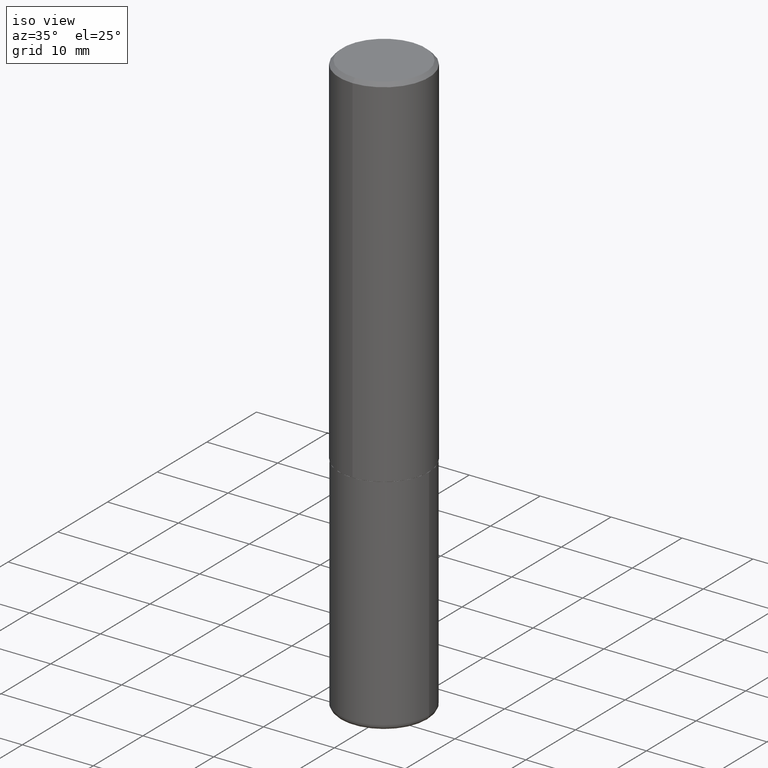
[diagram: clean part render]
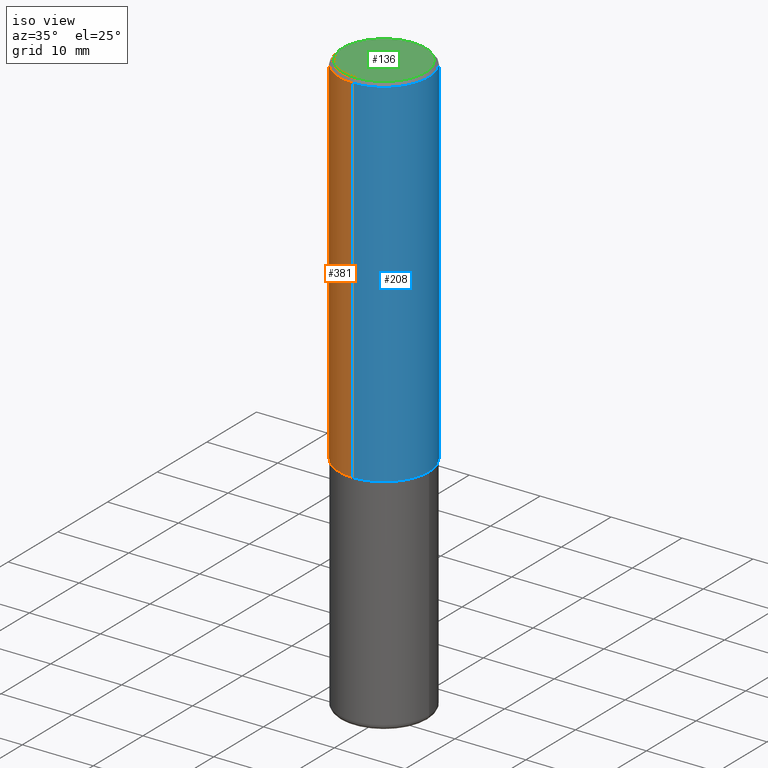
[diagram: same view with three faces highlighted in distinct colors, each labeled with its STEP entity id]
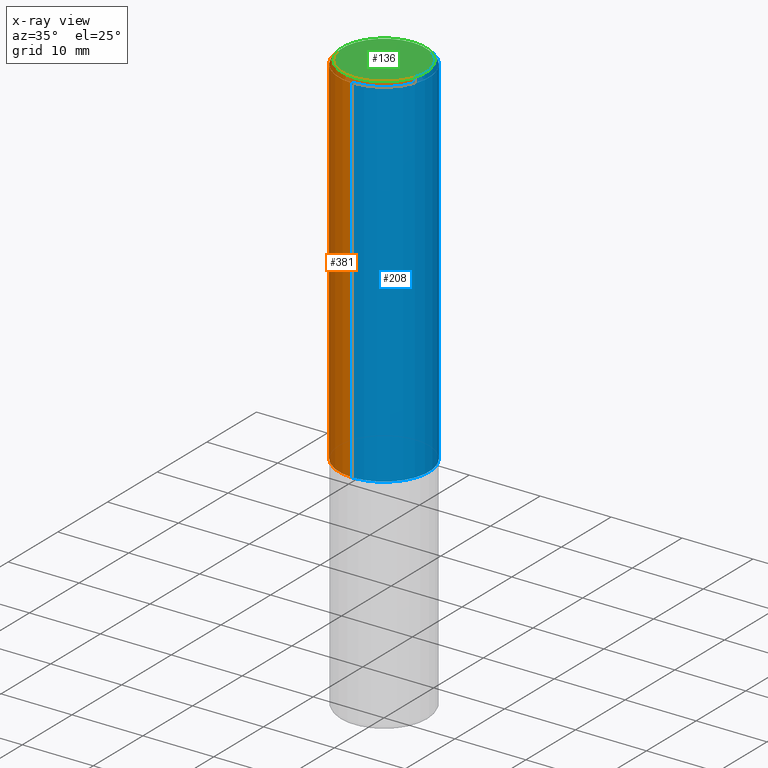
[diagram: x-ray of the same camera — body ghosted, the three highlighted faces saturated]
A machine part, iso view with three faces highlighted in distinct colors.
The next image is the same camera in x-ray (body ghosted, the three faces saturated) — at least one of them is partly hidden behind the body in this view.
Their STEP definitions:

[orange] entity #381 — the highlighted cylindrical surface (partial cylindrical patch) has radius 6.35 mm, axis along (-0, 0, 1).
#8 = CARTESIAN_POINT ( 'NONE',  ( 4.889829077511369061E-31, -6.984550162698166284E-17, -0.02000000000000005593 ) ) ;
#14 = DIRECTION ( 'NONE',  ( -6.982962677686265922E-15, -1.000000000000000000, 3.500180241882337261E-15 ) ) ;
#15 = VERTEX_POINT ( 'NONE', #246 ) ;
#30 = DIRECTION ( 'NONE',  ( -6.982962677686266711E-15, -1.000000000000000000, 3.492275081349073750E-15 ) ) ;
#60 = EDGE_CURVE ( 'NONE', #280, #15, #220, .T. ) ;
#61 = CARTESIAN_POINT ( 'NONE',  ( 1.776356839400276103E-15, 0.2499999999999933109, -1.999000000000000776 ) ) ;
#66 = CYLINDRICAL_SURFACE ( 'NONE', #195, 0.2500000000000001110 ) ;
#67 = ORIENTED_EDGE ( 'NONE', *, *, #150, .F. ) ;
#106 = CIRCLE ( 'NONE', #382, 0.2500000000000002220 ) ;
#111 = DIRECTION ( 'NONE',  ( -2.444914538755677752E-29, 3.492275081349073750E-15, 1.000000000000000000 ) ) ;
#138 = CARTESIAN_POINT ( 'NONE',  ( 0.000000000000000000, 0.000000000000000000, 0.000000000000000000 ) ) ;
#143 = ORIENTED_EDGE ( 'NONE', *, *, #60, .F. ) ;
#146 = VERTEX_POINT ( 'NONE', #61 ) ;
#150 = EDGE_CURVE ( 'NONE', #146, #280, #408, .T. ) ;
#152 = EDGE_LOOP ( 'NONE', ( #67, #204, #351, #143 ) ) ;
#162 = CARTESIAN_POINT ( 'NONE',  ( 4.887384162972599193E-29, -6.981057887616797828E-15, -1.998999999999999888 ) ) ;
#165 = VECTOR ( 'NONE', #416, 39.37007874015748143 ) ;
#169 = LINE ( 'NONE', #303, #165 ) ;
#183 = DIRECTION ( 'NONE',  ( -6.982962677686266711E-15, -1.000000000000000000, 3.278217592397113101E-15 ) ) ;
#186 = EDGE_CURVE ( 'NONE', #267, #15, #169, .T. ) ;
#192 = DIRECTION ( 'NONE',  ( -2.444914538755678032E-29, 3.492275081349073750E-15, 1.000000000000000000 ) ) ;
#195 = AXIS2_PLACEMENT_3D ( 'NONE', #138, #415, #30 ) ;
#204 = ORIENTED_EDGE ( 'NONE', *, *, #233, .T. ) ;
#213 = VECTOR ( 'NONE', #192, 39.37007874015748143 ) ;
#220 = CIRCLE ( 'NONE', #396, 0.2500000000000000000 ) ;
#233 = EDGE_CURVE ( 'NONE', #146, #267, #106, .T. ) ;
#246 = CARTESIAN_POINT ( 'NONE',  ( -1.715124499442882299E-15, -0.2500000000000000555, -0.01999999999999918163 ) ) ;
#267 = VERTEX_POINT ( 'NONE', #371 ) ;
#280 = VERTEX_POINT ( 'NONE', #294 ) ;
#294 = CARTESIAN_POINT ( 'NONE',  ( 1.745740669421566875E-15, 0.2499999999999999167, -0.02000000000000093023 ) ) ;
#303 = CARTESIAN_POINT ( 'NONE',  ( -1.745740669421567467E-15, -0.2500000000000001110, 8.730687703372688319E-16 ) ) ;
#326 = DIRECTION ( 'NONE',  ( -2.444914538755677752E-29, 3.492275081349073750E-15, 1.000000000000000000 ) ) ;
#339 = CARTESIAN_POINT ( 'NONE',  ( 1.776356839400251254E-15, 0.2500000000000001110, -8.730687703372688319E-16 ) ) ;
#351 = ORIENTED_EDGE ( 'NONE', *, *, #186, .T. ) ;
#371 = CARTESIAN_POINT ( 'NONE',  ( -1.745740669421519346E-15, -0.2500000000000072164, -1.998999999999999000 ) ) ;
#378 = FACE_OUTER_BOUND ( 'NONE', #152, .T. ) ;
#381 = ADVANCED_FACE ( 'NONE', ( #378 ), #66, .T. ) ;
#382 = AXIS2_PLACEMENT_3D ( 'NONE', #162, #111, #183 ) ;
#396 = AXIS2_PLACEMENT_3D ( 'NONE', #8, #326, #14 ) ;
#408 = LINE ( 'NONE', #339, #213 ) ;
#415 = DIRECTION ( 'NONE',  ( -2.444914538755677752E-29, 3.492275081349073750E-15, 1.000000000000000000 ) ) ;
#416 = DIRECTION ( 'NONE',  ( -2.444914538755678032E-29, 3.492275081349073750E-15, 1.000000000000000000 ) ) ;

[blue] entity #208 — the highlighted cylindrical surface (partial cylindrical patch) has radius 6.35 mm, axis along (-0, 0, 1).
#15 = VERTEX_POINT ( 'NONE', #246 ) ;
#18 = AXIS2_PLACEMENT_3D ( 'NONE', #411, #190, #347 ) ;
#33 = ORIENTED_EDGE ( 'NONE', *, *, #102, .T. ) ;
#55 = CARTESIAN_POINT ( 'NONE',  ( 0.000000000000000000, 0.000000000000000000, 0.000000000000000000 ) ) ;
#61 = CARTESIAN_POINT ( 'NONE',  ( 1.776356839400276103E-15, 0.2499999999999933109, -1.999000000000000776 ) ) ;
#101 = DIRECTION ( 'NONE',  ( -2.444914538755677752E-29, 3.492275081349073750E-15, 1.000000000000000000 ) ) ;
#102 = EDGE_CURVE ( 'NONE', #267, #146, #151, .T. ) ;
#119 = CARTESIAN_POINT ( 'NONE',  ( 4.889829077511369061E-31, -6.984550162698166284E-17, -0.02000000000000005593 ) ) ;
#132 = FACE_OUTER_BOUND ( 'NONE', #317, .T. ) ;
#139 = ORIENTED_EDGE ( 'NONE', *, *, #311, .F. ) ;
#144 = ORIENTED_EDGE ( 'NONE', *, *, #150, .T. ) ;
#146 = VERTEX_POINT ( 'NONE', #61 ) ;
#150 = EDGE_CURVE ( 'NONE', #146, #280, #408, .T. ) ;
#151 = CIRCLE ( 'NONE', #18, 0.2500000000000002220 ) ;
#165 = VECTOR ( 'NONE', #416, 39.37007874015748143 ) ;
#167 = DIRECTION ( 'NONE',  ( -6.982962677686266711E-15, -1.000000000000000000, 3.492275081349073750E-15 ) ) ;
#169 = LINE ( 'NONE', #303, #165 ) ;
#175 = AXIS2_PLACEMENT_3D ( 'NONE', #119, #398, #222 ) ;
#186 = EDGE_CURVE ( 'NONE', #267, #15, #169, .T. ) ;
#190 = DIRECTION ( 'NONE',  ( -2.444914538755677752E-29, 3.492275081349073750E-15, 1.000000000000000000 ) ) ;
#192 = DIRECTION ( 'NONE',  ( -2.444914538755678032E-29, 3.492275081349073750E-15, 1.000000000000000000 ) ) ;
#205 = ORIENTED_EDGE ( 'NONE', *, *, #186, .F. ) ;
#208 = ADVANCED_FACE ( 'NONE', ( #132 ), #255, .T. ) ;
#213 = VECTOR ( 'NONE', #192, 39.37007874015748143 ) ;
#222 = DIRECTION ( 'NONE',  ( -6.982962677686265922E-15, -1.000000000000000000, 3.500180241882337261E-15 ) ) ;
#228 = CIRCLE ( 'NONE', #175, 0.2500000000000000000 ) ;
#246 = CARTESIAN_POINT ( 'NONE',  ( -1.715124499442882299E-15, -0.2500000000000000555, -0.01999999999999918163 ) ) ;
#255 = CYLINDRICAL_SURFACE ( 'NONE', #335, 0.2500000000000001110 ) ;
#267 = VERTEX_POINT ( 'NONE', #371 ) ;
#280 = VERTEX_POINT ( 'NONE', #294 ) ;
#294 = CARTESIAN_POINT ( 'NONE',  ( 1.745740669421566875E-15, 0.2499999999999999167, -0.02000000000000093023 ) ) ;
#303 = CARTESIAN_POINT ( 'NONE',  ( -1.745740669421567467E-15, -0.2500000000000001110, 8.730687703372688319E-16 ) ) ;
#311 = EDGE_CURVE ( 'NONE', #15, #280, #228, .T. ) ;
#317 = EDGE_LOOP ( 'NONE', ( #33, #144, #139, #205 ) ) ;
#335 = AXIS2_PLACEMENT_3D ( 'NONE', #55, #101, #167 ) ;
#339 = CARTESIAN_POINT ( 'NONE',  ( 1.776356839400251254E-15, 0.2500000000000001110, -8.730687703372688319E-16 ) ) ;
#347 = DIRECTION ( 'NONE',  ( -6.982962677686266711E-15, -1.000000000000000000, 3.278217592397113101E-15 ) ) ;
#371 = CARTESIAN_POINT ( 'NONE',  ( -1.745740669421519346E-15, -0.2500000000000072164, -1.998999999999999000 ) ) ;
#398 = DIRECTION ( 'NONE',  ( -2.444914538755677752E-29, 3.492275081349073750E-15, 1.000000000000000000 ) ) ;
#408 = LINE ( 'NONE', #339, #213 ) ;
#411 = CARTESIAN_POINT ( 'NONE',  ( 4.887384162972599193E-29, -6.981057887616797828E-15, -1.998999999999999888 ) ) ;
#416 = DIRECTION ( 'NONE',  ( -2.444914538755678032E-29, 3.492275081349073750E-15, 1.000000000000000000 ) ) ;

[green] entity #136 — the highlighted planar face has unit normal (0, -0, -1).
#4 = VERTEX_POINT ( 'NONE', #361 ) ;
#41 = EDGE_CURVE ( 'NONE', #4, #387, #343, .T. ) ;
#51 = CARTESIAN_POINT ( 'NONE',  ( -2.404777551521915738E-45, 3.434944079330397096E-31, 9.835834804867292393E-17 ) ) ;
#70 = DIRECTION ( 'NONE',  ( -2.444914538755677752E-29, 3.492275081349073750E-15, 1.000000000000000000 ) ) ;
#84 = FACE_OUTER_BOUND ( 'NONE', #271, .T. ) ;
#99 = DIRECTION ( 'NONE',  ( -6.982962677686265922E-15, -1.000000000000000000, 3.492275081349073750E-15 ) ) ;
#118 = ORIENTED_EDGE ( 'NONE', *, *, #121, .T. ) ;
#121 = EDGE_CURVE ( 'NONE', #387, #4, #207, .T. ) ;
#126 = DIRECTION ( 'NONE',  ( -6.982962677686265922E-15, -1.000000000000000000, 3.492275081349073750E-15 ) ) ;
#136 = ADVANCED_FACE ( 'NONE', ( #84 ), #227, .F. ) ;
#164 = DIRECTION ( 'NONE',  ( 2.444914538755677191E-29, -3.492275081349073750E-15, -1.000000000000000000 ) ) ;
#177 = CARTESIAN_POINT ( 'NONE',  ( -2.404777551521915738E-45, 3.434944079330397096E-31, 9.835834804867292393E-17 ) ) ;
#207 = CIRCLE ( 'NONE', #365, 0.2299999999999998990 ) ;
#221 = DIRECTION ( 'NONE',  ( 6.982962677686265922E-15, 1.000000000000000000, -3.492275081349073750E-15 ) ) ;
#227 = PLANE ( 'NONE',  #353 ) ;
#271 = EDGE_LOOP ( 'NONE', ( #118, #286 ) ) ;
#286 = ORIENTED_EDGE ( 'NONE', *, *, #41, .T. ) ;
#313 = AXIS2_PLACEMENT_3D ( 'NONE', #177, #70, #99 ) ;
#343 = CIRCLE ( 'NONE', #313, 0.2299999999999998990 ) ;
#353 = AXIS2_PLACEMENT_3D ( 'NONE', #414, #164, #221 ) ;
#361 = CARTESIAN_POINT ( 'NONE',  ( -1.646519519465166770E-15, -0.2299999999999998990, 9.015816167589595013E-16 ) ) ;
#365 = AXIS2_PLACEMENT_3D ( 'NONE', #51, #405, #126 ) ;
#386 = CARTESIAN_POINT ( 'NONE',  ( 1.675911042644703774E-15, 0.2299999999999998990, -7.048649206616136781E-16 ) ) ;
#387 = VERTEX_POINT ( 'NONE', #386 ) ;
#405 = DIRECTION ( 'NONE',  ( -2.444914538755677752E-29, 3.492275081349073750E-15, 1.000000000000000000 ) ) ;
#414 = CARTESIAN_POINT ( 'NONE',  ( 1.606081415867840476E-15, 0.2299999999999998990, -7.540440946859502079E-16 ) ) ;